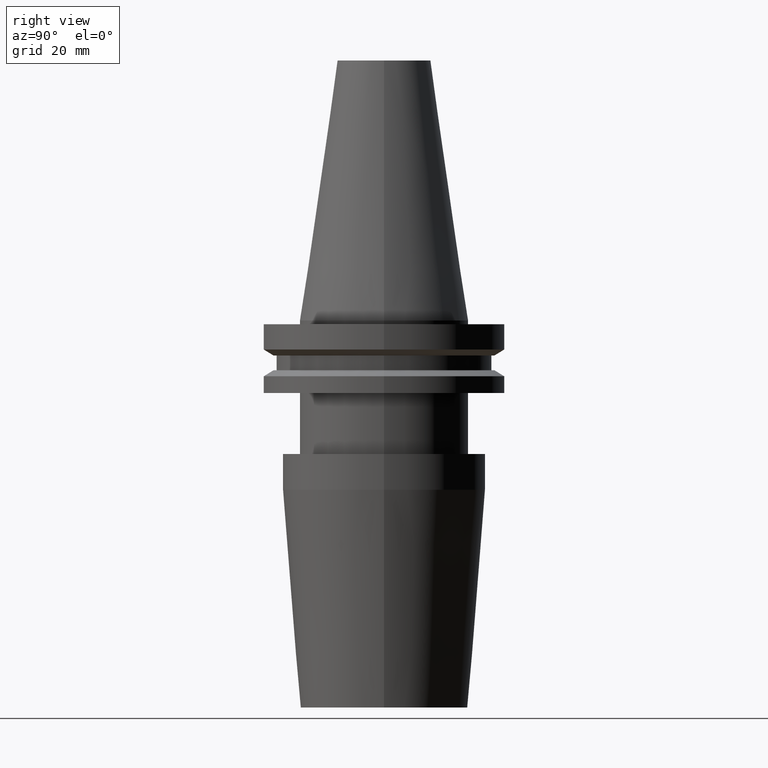
[diagram: clean part render]
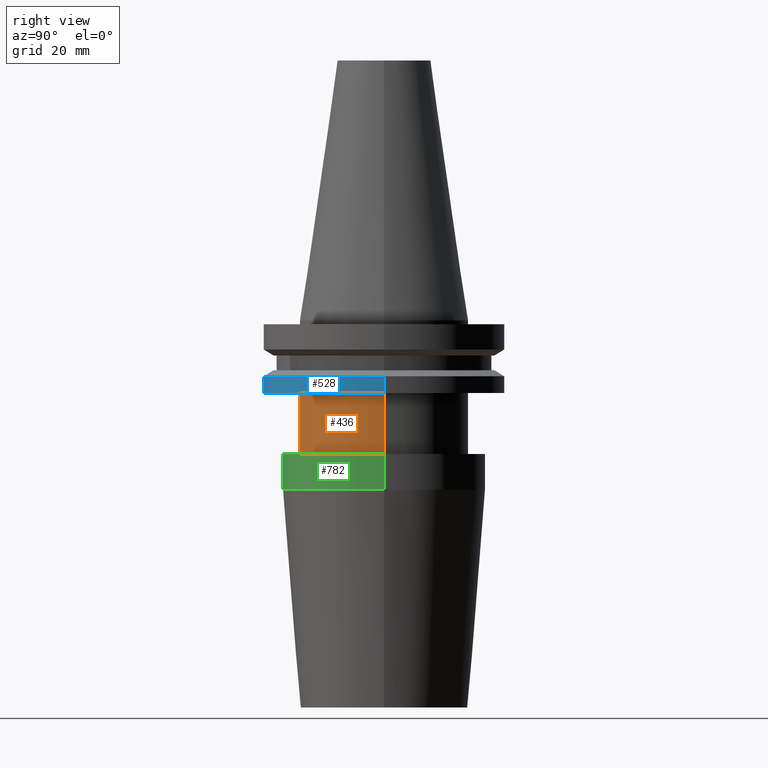
[diagram: same view with three faces highlighted in distinct colors, each labeled with its STEP entity id]
A machine part, right view with three faces highlighted in distinct colors.
Their STEP definitions:

[orange] entity #436 — the highlighted cylindrical surface (partial cylindrical patch) has radius 22.225 mm, axis along (-0, -0, 1).
#27 = EDGE_LOOP ( 'NONE', ( #347, #461, #481, #83 ) ) ;
#39 = DIRECTION ( 'NONE',  ( -0.000000000000000000, -0.000000000000000000, 1.000000000000000000 ) ) ;
#52 = VERTEX_POINT ( 'NONE', #625 ) ;
#55 = CARTESIAN_POINT ( 'NONE',  ( -22.22499999999999787, 2.721777511104992454E-15, -35.04999999999999716 ) ) ;
#63 = DIRECTION ( 'NONE',  ( 1.000000000000000000, 0.000000000000000000, 0.000000000000000000 ) ) ;
#69 = CARTESIAN_POINT ( 'NONE',  ( -22.22500000000000142, 2.721777511104992849E-15, 68.25000000000000000 ) ) ;
#80 = DIRECTION ( 'NONE',  ( -0.000000000000000000, -0.000000000000000000, 1.000000000000000000 ) ) ;
#83 = ORIENTED_EDGE ( 'NONE', *, *, #121, .F. ) ;
#119 = VECTOR ( 'NONE', #338, 1000.000000000000000 ) ;
#121 = EDGE_CURVE ( 'NONE', #52, #793, #767, .T. ) ;
#131 = CARTESIAN_POINT ( 'NONE',  ( 0.000000000000000000, 0.000000000000000000, -35.04999999999999716 ) ) ;
#176 = CIRCLE ( 'NONE', #393, 22.22499999999999787 ) ;
#194 = LINE ( 'NONE', #69, #381 ) ;
#219 = VERTEX_POINT ( 'NONE', #55 ) ;
#231 = CARTESIAN_POINT ( 'NONE',  ( 0.000000000000000000, 0.000000000000000000, -19.04999999999999716 ) ) ;
#254 = EDGE_CURVE ( 'NONE', #219, #700, #176, .T. ) ;
#283 = CYLINDRICAL_SURFACE ( 'NONE', #696, 22.22500000000000142 ) ;
#338 = DIRECTION ( 'NONE',  ( -0.000000000000000000, -0.000000000000000000, 1.000000000000000000 ) ) ;
#347 = ORIENTED_EDGE ( 'NONE', *, *, #679, .F. ) ;
#379 = DIRECTION ( 'NONE',  ( -0.000000000000000000, -0.000000000000000000, 1.000000000000000000 ) ) ;
#381 = VECTOR ( 'NONE', #458, 1000.000000000000000 ) ;
#393 = AXIS2_PLACEMENT_3D ( 'NONE', #131, #379, #63 ) ;
#436 = ADVANCED_FACE ( 'NONE', ( #740 ), #283, .T. ) ;
#458 = DIRECTION ( 'NONE',  ( -0.000000000000000000, -0.000000000000000000, 1.000000000000000000 ) ) ;
#461 = ORIENTED_EDGE ( 'NONE', *, *, #254, .T. ) ;
#481 = ORIENTED_EDGE ( 'NONE', *, *, #699, .T. ) ;
#560 = AXIS2_PLACEMENT_3D ( 'NONE', #231, #39, #750 ) ;
#594 = CARTESIAN_POINT ( 'NONE',  ( 22.22500000000000142, 0.000000000000000000, 68.25000000000000000 ) ) ;
#599 = CARTESIAN_POINT ( 'NONE',  ( 22.22499999999999787, 0.000000000000000000, -35.04999999999999716 ) ) ;
#601 = DIRECTION ( 'NONE',  ( 1.000000000000000000, 0.000000000000000000, 0.000000000000000000 ) ) ;
#625 = CARTESIAN_POINT ( 'NONE',  ( -22.22500000000000142, 2.721777511104992849E-15, -19.04999999999999716 ) ) ;
#673 = CARTESIAN_POINT ( 'NONE',  ( 0.000000000000000000, 0.000000000000000000, 68.25000000000000000 ) ) ;
#679 = EDGE_CURVE ( 'NONE', #219, #52, #194, .T. ) ;
#696 = AXIS2_PLACEMENT_3D ( 'NONE', #673, #80, #601 ) ;
#699 = EDGE_CURVE ( 'NONE', #700, #793, #790, .T. ) ;
#700 = VERTEX_POINT ( 'NONE', #599 ) ;
#738 = CARTESIAN_POINT ( 'NONE',  ( 22.22500000000000142, 0.000000000000000000, -19.04999999999999716 ) ) ;
#740 = FACE_OUTER_BOUND ( 'NONE', #27, .T. ) ;
#750 = DIRECTION ( 'NONE',  ( 1.000000000000000000, 0.000000000000000000, 0.000000000000000000 ) ) ;
#767 = CIRCLE ( 'NONE', #560, 22.22500000000000142 ) ;
#790 = LINE ( 'NONE', #594, #119 ) ;
#793 = VERTEX_POINT ( 'NONE', #738 ) ;

[blue] entity #528 — the highlighted cylindrical surface (partial cylindrical patch) has radius 31.75 mm, axis along (-0, -0, 1).
#18 = VECTOR ( 'NONE', #58, 1000.000000000000000 ) ;
#33 = CIRCLE ( 'NONE', #102, 31.75000000000000000 ) ;
#43 = FACE_OUTER_BOUND ( 'NONE', #204, .T. ) ;
#58 = DIRECTION ( 'NONE',  ( -0.000000000000000000, -0.000000000000000000, 1.000000000000000000 ) ) ;
#102 = AXIS2_PLACEMENT_3D ( 'NONE', #747, #559, #544 ) ;
#113 = CARTESIAN_POINT ( 'NONE',  ( 31.75000000000000000, 0.000000000000000000, -14.65472339340266572 ) ) ;
#167 = VERTEX_POINT ( 'NONE', #428 ) ;
#178 = CARTESIAN_POINT ( 'NONE',  ( 0.000000000000000000, 0.000000000000000000, 68.25000000000000000 ) ) ;
#204 = EDGE_LOOP ( 'NONE', ( #266, #723, #538, #662 ) ) ;
#233 = CARTESIAN_POINT ( 'NONE',  ( -31.75000000000000000, 3.888253587292846476E-15, -14.65472339340266572 ) ) ;
#251 = DIRECTION ( 'NONE',  ( 1.000000000000000000, 0.000000000000000000, 0.000000000000000000 ) ) ;
#266 = ORIENTED_EDGE ( 'NONE', *, *, #756, .F. ) ;
#278 = VERTEX_POINT ( 'NONE', #843 ) ;
#282 = LINE ( 'NONE', #743, #815 ) ;
#300 = CIRCLE ( 'NONE', #365, 31.74999999999999289 ) ;
#365 = AXIS2_PLACEMENT_3D ( 'NONE', #705, #515, #749 ) ;
#387 = CARTESIAN_POINT ( 'NONE',  ( -31.75000000000000000, 3.888253587292846476E-15, 68.25000000000000000 ) ) ;
#428 = CARTESIAN_POINT ( 'NONE',  ( -31.74999999999999289, 3.888253587292845687E-15, -19.04999999999999716 ) ) ;
#492 = EDGE_CURVE ( 'NONE', #167, #278, #300, .T. ) ;
#509 = VERTEX_POINT ( 'NONE', #113 ) ;
#515 = DIRECTION ( 'NONE',  ( -0.000000000000000000, -0.000000000000000000, 1.000000000000000000 ) ) ;
#528 = ADVANCED_FACE ( 'NONE', ( #43 ), #771, .T. ) ;
#538 = ORIENTED_EDGE ( 'NONE', *, *, #819, .T. ) ;
#544 = DIRECTION ( 'NONE',  ( 1.000000000000000000, 0.000000000000000000, 0.000000000000000000 ) ) ;
#559 = DIRECTION ( 'NONE',  ( -0.000000000000000000, -0.000000000000000000, 1.000000000000000000 ) ) ;
#622 = DIRECTION ( 'NONE',  ( -0.000000000000000000, -0.000000000000000000, 1.000000000000000000 ) ) ;
#662 = ORIENTED_EDGE ( 'NONE', *, *, #846, .F. ) ;
#705 = CARTESIAN_POINT ( 'NONE',  ( 0.000000000000000000, 0.000000000000000000, -19.04999999999999716 ) ) ;
#723 = ORIENTED_EDGE ( 'NONE', *, *, #492, .T. ) ;
#743 = CARTESIAN_POINT ( 'NONE',  ( 31.75000000000000000, 0.000000000000000000, 68.25000000000000000 ) ) ;
#747 = CARTESIAN_POINT ( 'NONE',  ( 0.000000000000000000, 0.000000000000000000, -14.65472339340266572 ) ) ;
#749 = DIRECTION ( 'NONE',  ( 1.000000000000000000, 0.000000000000000000, 0.000000000000000000 ) ) ;
#756 = EDGE_CURVE ( 'NONE', #167, #784, #841, .T. ) ;
#771 = CYLINDRICAL_SURFACE ( 'NONE', #786, 31.75000000000000000 ) ;
#784 = VERTEX_POINT ( 'NONE', #233 ) ;
#786 = AXIS2_PLACEMENT_3D ( 'NONE', #178, #622, #251 ) ;
#806 = DIRECTION ( 'NONE',  ( -0.000000000000000000, -0.000000000000000000, 1.000000000000000000 ) ) ;
#815 = VECTOR ( 'NONE', #806, 1000.000000000000000 ) ;
#819 = EDGE_CURVE ( 'NONE', #278, #509, #282, .T. ) ;
#841 = LINE ( 'NONE', #387, #18 ) ;
#843 = CARTESIAN_POINT ( 'NONE',  ( 31.74999999999999289, 0.000000000000000000, -19.04999999999999716 ) ) ;
#846 = EDGE_CURVE ( 'NONE', #784, #509, #33, .T. ) ;

[green] entity #782 — the highlighted cylindrical surface (partial cylindrical patch) has radius 26.5 mm, axis along (-0, -0, 1).
#4 = EDGE_CURVE ( 'NONE', #475, #394, #430, .T. ) ;
#19 = VERTEX_POINT ( 'NONE', #342 ) ;
#25 = DIRECTION ( 'NONE',  ( 1.000000000000000000, 0.000000000000000000, 0.000000000000000000 ) ) ;
#47 = AXIS2_PLACEMENT_3D ( 'NONE', #272, #277, #223 ) ;
#75 = CIRCLE ( 'NONE', #47, 26.50000000000000000 ) ;
#92 = CARTESIAN_POINT ( 'NONE',  ( -26.49999999999999645, 3.245314017740485370E-15, -44.42207868720777952 ) ) ;
#106 = AXIS2_PLACEMENT_3D ( 'NONE', #684, #469, #140 ) ;
#140 = DIRECTION ( 'NONE',  ( 1.000000000000000000, 0.000000000000000000, 0.000000000000000000 ) ) ;
#186 = VECTOR ( 'NONE', #411, 1000.000000000000000 ) ;
#202 = AXIS2_PLACEMENT_3D ( 'NONE', #396, #850, #25 ) ;
#203 = LINE ( 'NONE', #612, #186 ) ;
#216 = VECTOR ( 'NONE', #715, 1000.000000000000000 ) ;
#223 = DIRECTION ( 'NONE',  ( 1.000000000000000000, 0.000000000000000000, 0.000000000000000000 ) ) ;
#256 = CARTESIAN_POINT ( 'NONE',  ( 26.49999999999999645, 0.000000000000000000, 0.000000000000000000 ) ) ;
#268 = CARTESIAN_POINT ( 'NONE',  ( 26.49999999999999645, 0.000000000000000000, -44.42207868720777952 ) ) ;
#272 = CARTESIAN_POINT ( 'NONE',  ( 0.000000000000000000, 0.000000000000000000, -35.04999999999999716 ) ) ;
#274 = ORIENTED_EDGE ( 'NONE', *, *, #359, .T. ) ;
#277 = DIRECTION ( 'NONE',  ( -0.000000000000000000, -0.000000000000000000, 1.000000000000000000 ) ) ;
#342 = CARTESIAN_POINT ( 'NONE',  ( 26.50000000000000000, 0.000000000000000000, -35.04999999999999716 ) ) ;
#359 = EDGE_CURVE ( 'NONE', #394, #19, #837, .T. ) ;
#384 = EDGE_CURVE ( 'NONE', #653, #19, #75, .T. ) ;
#394 = VERTEX_POINT ( 'NONE', #268 ) ;
#396 = CARTESIAN_POINT ( 'NONE',  ( 0.000000000000000000, 0.000000000000000000, 0.000000000000000000 ) ) ;
#411 = DIRECTION ( 'NONE',  ( -0.000000000000000000, -0.000000000000000000, 1.000000000000000000 ) ) ;
#420 = EDGE_LOOP ( 'NONE', ( #693, #775, #274, #619 ) ) ;
#430 = CIRCLE ( 'NONE', #106, 26.49999999999999645 ) ;
#431 = EDGE_CURVE ( 'NONE', #475, #653, #203, .T. ) ;
#463 = CARTESIAN_POINT ( 'NONE',  ( -26.50000000000000355, 3.245314017740486159E-15, -35.04999999999999716 ) ) ;
#469 = DIRECTION ( 'NONE',  ( -0.000000000000000000, -0.000000000000000000, 1.000000000000000000 ) ) ;
#475 = VERTEX_POINT ( 'NONE', #92 ) ;
#612 = CARTESIAN_POINT ( 'NONE',  ( -26.49999999999999645, 3.245314017740485370E-15, 0.000000000000000000 ) ) ;
#619 = ORIENTED_EDGE ( 'NONE', *, *, #384, .F. ) ;
#653 = VERTEX_POINT ( 'NONE', #463 ) ;
#684 = CARTESIAN_POINT ( 'NONE',  ( 0.000000000000000000, 0.000000000000000000, -44.42207868720777952 ) ) ;
#693 = ORIENTED_EDGE ( 'NONE', *, *, #431, .F. ) ;
#715 = DIRECTION ( 'NONE',  ( -0.000000000000000000, -0.000000000000000000, 1.000000000000000000 ) ) ;
#720 = CYLINDRICAL_SURFACE ( 'NONE', #202, 26.49999999999999645 ) ;
#775 = ORIENTED_EDGE ( 'NONE', *, *, #4, .T. ) ;
#782 = ADVANCED_FACE ( 'NONE', ( #845 ), #720, .T. ) ;
#837 = LINE ( 'NONE', #256, #216 ) ;
#845 = FACE_OUTER_BOUND ( 'NONE', #420, .T. ) ;
#850 = DIRECTION ( 'NONE',  ( -0.000000000000000000, -0.000000000000000000, 1.000000000000000000 ) ) ;